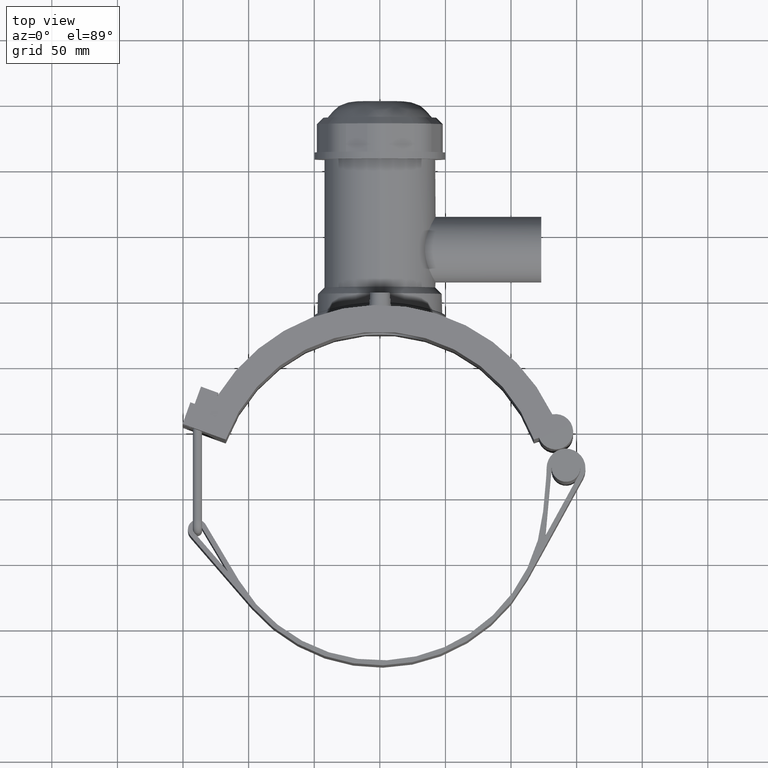
[diagram: clean part render]
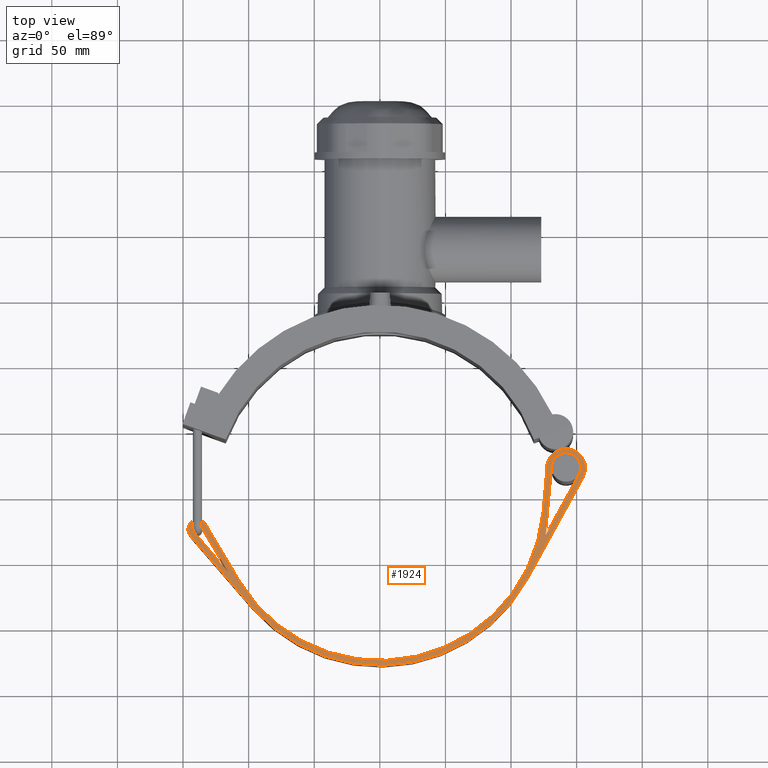
[diagram: same view with one face highlighted and labeled with its STEP entity id]
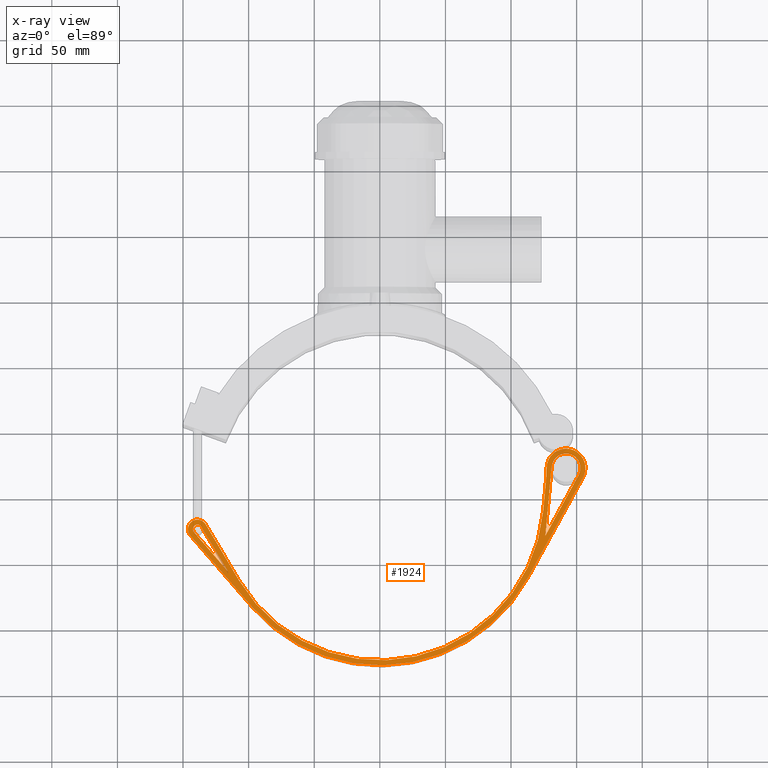
[diagram: x-ray of the same camera — body ghosted, the highlighted face saturated]
A machine part, top view. The second image highlights one B-rep face of the part: STEP entity #1924.
The next image is the same camera in x-ray: the body ghosted, the highlighted face saturated — about 0% of this face is hidden behind the body in this view.
In plain terms, the highlighted planar face has unit normal (0, 0, 1).
Its self-contained STEP definition (entity closure, byte-faithful):
#97=LINE('',#3330,#258);
#100=LINE('',#3336,#261);
#108=LINE('',#3369,#269);
#109=LINE('',#3373,#270);
#110=LINE('',#3377,#271);
#111=LINE('',#3381,#272);
#112=LINE('',#3391,#273);
#113=LINE('',#3392,#274);
#258=VECTOR('',#2432,52.9196756847128);
#261=VECTOR('',#2437,52.9196756847128);
#269=VECTOR('',#2465,23.4220609933609);
#270=VECTOR('',#2468,49.6257854616819);
#271=VECTOR('',#2471,72.0453404647995);
#272=VECTOR('',#2474,87.3267515625168);
#273=VECTOR('',#2483,39.6138549528074);
#274=VECTOR('',#2484,39.6138549528074);
#376=FACE_BOUND('',#640,.T.);
#377=FACE_BOUND('',#641,.T.);
#503=FACE_OUTER_BOUND('',#639,.T.);
#639=EDGE_LOOP('',(#1483,#1484,#1485,#1486,#1487,#1488,#1489,#1490,#1491,
#1492));
#640=EDGE_LOOP('',(#1493,#1494,#1495));
#641=EDGE_LOOP('',(#1496,#1497,#1498));
#775=CIRCLE('',#2089,125.);
#776=CIRCLE('',#2090,7.25);
#777=CIRCLE('',#2091,128.75);
#778=CIRCLE('',#2092,14.8076923076923);
#779=CIRCLE('',#2093,14.8076923076923);
#780=CIRCLE('',#2094,125.);
#781=CIRCLE('',#2095,3.49999999999997);
#782=CIRCLE('',#2096,11.0576923076923);
#884=VERTEX_POINT('',#3327);
#885=VERTEX_POINT('',#3329);
#887=VERTEX_POINT('',#3335);
#901=VERTEX_POINT('',#3367);
#902=VERTEX_POINT('',#3368);
#903=VERTEX_POINT('',#3370);
#904=VERTEX_POINT('',#3372);
#905=VERTEX_POINT('',#3374);
#906=VERTEX_POINT('',#3376);
#907=VERTEX_POINT('',#3378);
#908=VERTEX_POINT('',#3380);
#909=VERTEX_POINT('',#3382);
#910=VERTEX_POINT('',#3384);
#911=VERTEX_POINT('',#3387);
#912=VERTEX_POINT('',#3388);
#913=VERTEX_POINT('',#3390);
#1097=EDGE_CURVE('',#885,#884,#97,.T.);
#1100=EDGE_CURVE('',#887,#885,#100,.T.);
#1116=EDGE_CURVE('',#901,#902,#108,.T.);
#1117=EDGE_CURVE('',#902,#903,#775,.T.);
#1118=EDGE_CURVE('',#903,#904,#109,.T.);
#1119=EDGE_CURVE('',#904,#905,#776,.T.);
#1120=EDGE_CURVE('',#905,#906,#110,.T.);
#1121=EDGE_CURVE('',#906,#907,#777,.T.);
#1122=EDGE_CURVE('',#907,#908,#111,.T.);
#1123=EDGE_CURVE('',#908,#909,#778,.T.);
#1124=EDGE_CURVE('',#909,#910,#779,.T.);
#1125=EDGE_CURVE('',#901,#910,#780,.T.);
#1126=EDGE_CURVE('',#911,#912,#781,.T.);
#1127=EDGE_CURVE('',#912,#913,#112,.T.);
#1128=EDGE_CURVE('',#913,#911,#113,.T.);
#1129=EDGE_CURVE('',#887,#884,#782,.T.);
#1483=ORIENTED_EDGE('',*,*,#1116,.T.);
#1484=ORIENTED_EDGE('',*,*,#1117,.T.);
#1485=ORIENTED_EDGE('',*,*,#1118,.T.);
#1486=ORIENTED_EDGE('',*,*,#1119,.T.);
#1487=ORIENTED_EDGE('',*,*,#1120,.T.);
#1488=ORIENTED_EDGE('',*,*,#1121,.T.);
#1489=ORIENTED_EDGE('',*,*,#1122,.T.);
#1490=ORIENTED_EDGE('',*,*,#1123,.T.);
#1491=ORIENTED_EDGE('',*,*,#1124,.T.);
#1492=ORIENTED_EDGE('',*,*,#1125,.F.);
#1493=ORIENTED_EDGE('',*,*,#1126,.T.);
#1494=ORIENTED_EDGE('',*,*,#1127,.T.);
#1495=ORIENTED_EDGE('',*,*,#1128,.T.);
#1496=ORIENTED_EDGE('',*,*,#1100,.T.);
#1497=ORIENTED_EDGE('',*,*,#1097,.T.);
#1498=ORIENTED_EDGE('',*,*,#1129,.F.);
#1830=PLANE('',#2088);
#1924=ADVANCED_FACE('',(#503,#376,#377),#1830,.T.);
#2088=AXIS2_PLACEMENT_3D('',#3366,#2463,#2464);
#2089=AXIS2_PLACEMENT_3D('',#3371,#2466,#2467);
#2090=AXIS2_PLACEMENT_3D('',#3375,#2469,#2470);
#2091=AXIS2_PLACEMENT_3D('',#3379,#2472,#2473);
#2092=AXIS2_PLACEMENT_3D('',#3383,#2475,#2476);
#2093=AXIS2_PLACEMENT_3D('',#3385,#2477,#2478);
#2094=AXIS2_PLACEMENT_3D('',#3386,#2479,#2480);
#2095=AXIS2_PLACEMENT_3D('',#3389,#2481,#2482);
#2096=AXIS2_PLACEMENT_3D('',#3393,#2485,#2486);
#2432=DIRECTION('',(0.0905873526607484,0.995888513608786,0.));
#2437=DIRECTION('',(-0.481783564841131,-0.876290246806942,0.));
#2463=DIRECTION('center_axis',(0.,0.,1.));
#2464=DIRECTION('ref_axis',(1.,0.,0.));
#2465=DIRECTION('',(-0.090587352660749,-0.995888513608786,0.));
#2466=DIRECTION('center_axis',(0.,0.,-1.));
#2467=DIRECTION('ref_axis',(0.859295298342616,0.511479804338621,0.));
#2468=DIRECTION('',(-0.511479804338621,0.859295298342616,0.));
#2469=DIRECTION('center_axis',(0.,0.,1.));
#2470=DIRECTION('ref_axis',(-1.,0.,0.));
#2471=DIRECTION('',(0.654222560450905,-0.756302083427688,0.));
#2472=DIRECTION('center_axis',(0.,0.,1.));
#2473=DIRECTION('ref_axis',(0.98858601250743,0.150657545030643,0.));
#2474=DIRECTION('',(0.481783564841131,0.876290246806942,0.));
#2475=DIRECTION('center_axis',(0.,0.,1.));
#2476=DIRECTION('ref_axis',(0.333937766224138,-0.942595124265574,0.));
#2477=DIRECTION('center_axis',(0.,0.,1.));
#2478=DIRECTION('ref_axis',(0.333937766224138,-0.942595124265574,0.));
#2479=DIRECTION('center_axis',(0.,0.,1.));
#2480=DIRECTION('ref_axis',(0.998677892414806,-0.0514049336340487,0.));
#2481=DIRECTION('center_axis',(0.,0.,-1.));
#2482=DIRECTION('ref_axis',(0.,-1.,0.));
#2483=DIRECTION('',(0.511479804338621,-0.859295298342616,0.));
#2484=DIRECTION('',(-0.654222560450905,0.756302083427688,0.));
#2485=DIRECTION('center_axis',(0.,0.,1.));
#2486=DIRECTION('ref_axis',(1.,0.,0.));
#3327=CARTESIAN_POINT('',(130.906897846979,22.6297365660324,52.8));
#3329=CARTESIAN_POINT('',(126.113044523036,-30.0723605922753,52.8));
#3330=CARTESIAN_POINT('',(123.663223567475,-57.0049121944555,52.8));
#3335=CARTESIAN_POINT('',(151.608874524653,16.300635074425,52.8));
#3336=CARTESIAN_POINT('',(116.363818225473,-47.8047046195874,52.8));
#3366=CARTESIAN_POINT('Origin',(12.2062893552673,-74.02203081777,52.8));
#3367=CARTESIAN_POINT('',(126.607806700345,12.0023424257388,52.8));
#3368=CARTESIAN_POINT('',(124.486064201098,-11.3234190825937,52.8));
#3369=CARTESIAN_POINT('',(127.280449110332,19.3971589226953,52.8));
#3370=CARTESIAN_POINT('',(-107.411912292827,-63.9349755423277,52.8));
#3371=CARTESIAN_POINT('Origin',(0.,0.,52.8));
#3372=CARTESIAN_POINT('',(-132.794499330919,-21.291771418545,52.8));
#3373=CARTESIAN_POINT('',(-107.411912292827,-63.9349755423277,52.8));
#3374=CARTESIAN_POINT('',(-144.507580348753,-29.7431135632691,52.8));
#3375=CARTESIAN_POINT('Origin',(-139.024390243902,-25.,52.8));
#3376=CARTESIAN_POINT('',(-97.3738932413148,-84.2311546580541,52.8));
#3377=CARTESIAN_POINT('',(-144.507580348753,-29.7431135632691,52.8));
#3378=CARTESIAN_POINT('',(112.822369276394,-62.0296339732956,52.8));
#3379=CARTESIAN_POINT('Origin',(0.,0.,52.8));
#3380=CARTESIAN_POINT('',(154.894962950179,14.4939467062708,52.8));
#3381=CARTESIAN_POINT('',(112.822369276394,-62.0296339732956,52.8));
#3382=CARTESIAN_POINT('',(137.721878529248,35.8284318855429,52.8));
#3383=CARTESIAN_POINT('Origin',(141.91912660323,21.6280494933414,52.8));
#3384=CARTESIAN_POINT('',(127.112526086027,21.8078621826871,52.8));
#3385=CARTESIAN_POINT('Origin',(141.91912660323,21.6280494933414,52.8));
#3386=CARTESIAN_POINT('Origin',(2.12174249924715,23.3257615083324,52.8));
#3387=CARTESIAN_POINT('',(-141.671447535899,-27.2897789615782,52.8));
#3388=CARTESIAN_POINT('',(-136.016856699703,-23.2098206848148,52.8));
#3389=CARTESIAN_POINT('Origin',(-139.024390243902,-25.,52.8));
#3390=CARTESIAN_POINT('',(-115.755169919343,-57.2498199949886,52.8));
#3391=CARTESIAN_POINT('',(-95.331273929945,-91.562333702586,52.8));
#3392=CARTESIAN_POINT('',(-97.1797382939693,-78.7236096318914,52.8));
#3393=CARTESIAN_POINT('Origin',(141.91912660323,21.6280494933414,52.8));